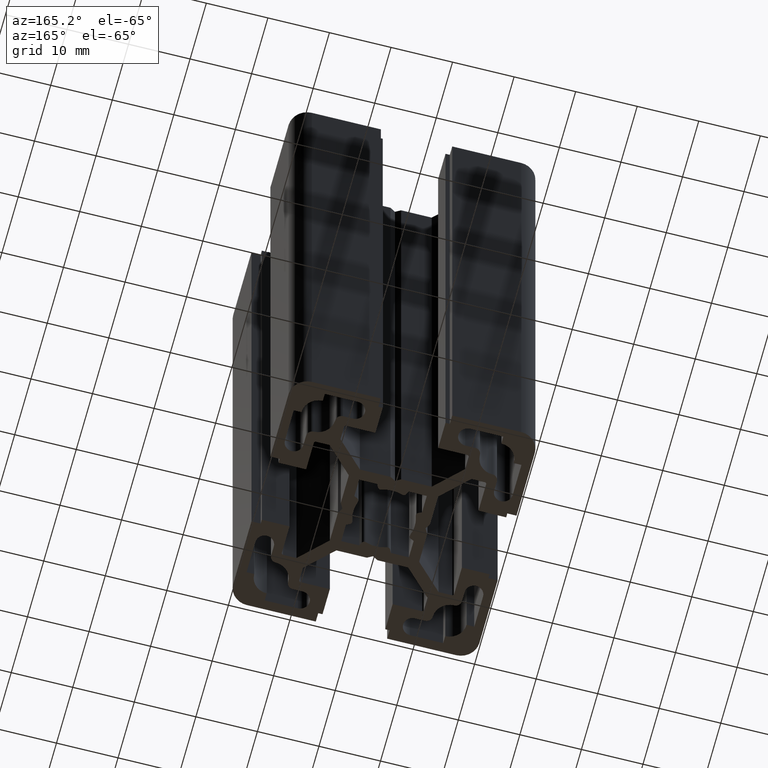
[diagram: clean part render]
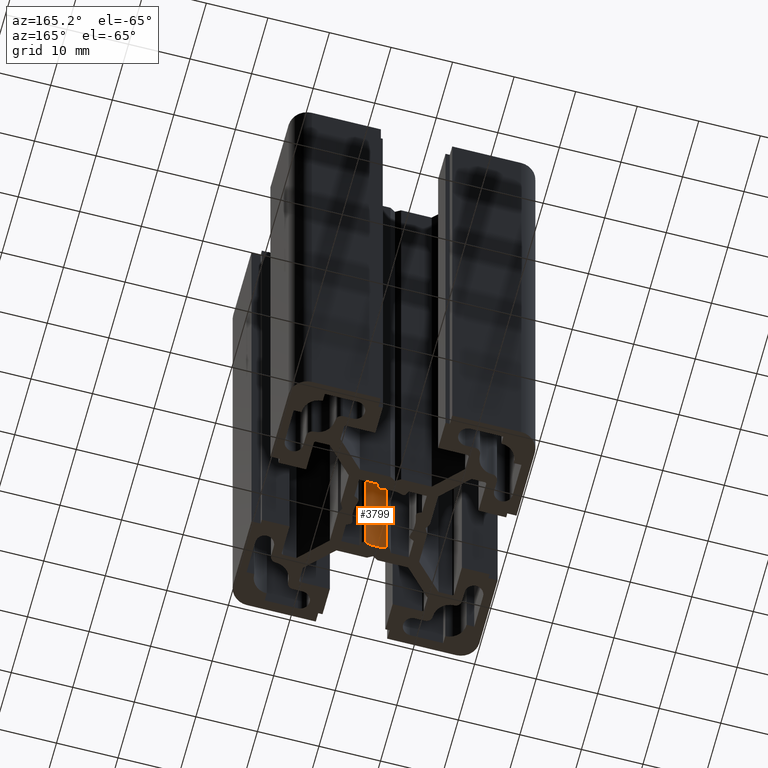
[diagram: same view with one face highlighted and labeled with its STEP entity id]
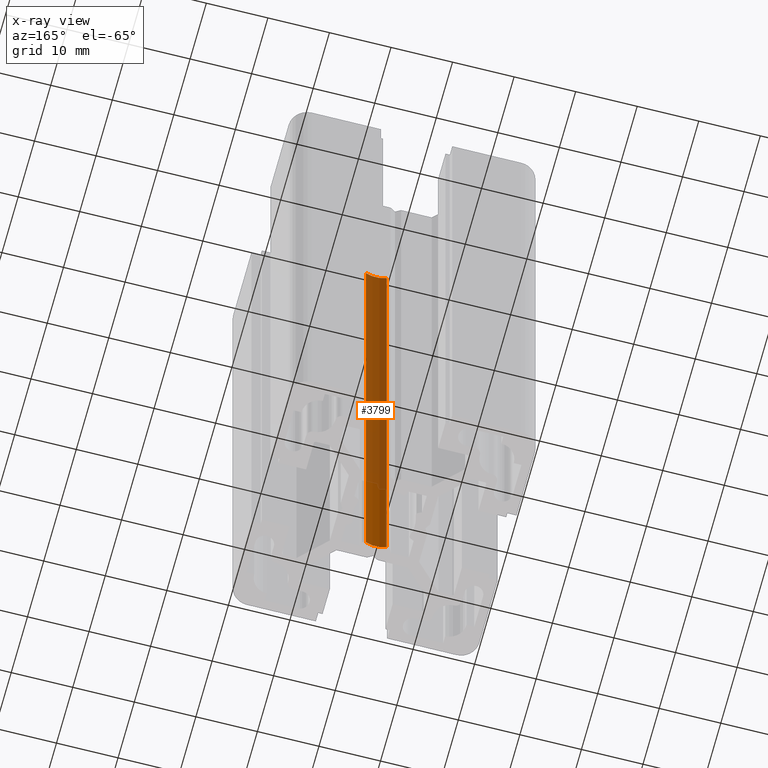
[diagram: x-ray of the same camera — body ghosted, the highlighted face saturated]
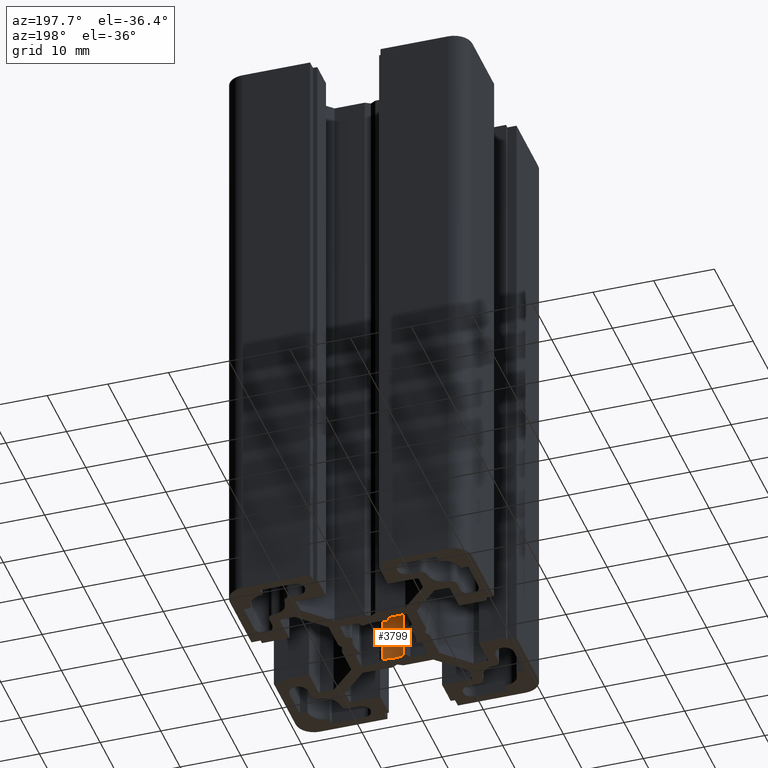
[diagram: same view with one face highlighted and labeled with its STEP entity id]
A machine part, auxiliary view. The second image highlights one B-rep face of the part: STEP entity #3799.
The next image is the same camera in x-ray: the body ghosted, the highlighted face saturated — about 78% of this face is hidden behind the body in this view.
A second angle (auxiliary view) of the same face is appended — the face is thin or edge-on in the first view.
In plain terms, the highlighted cylindrical surface (edge-blend (fillet) strip) has radius 5 mm, axis along (-0, -0, -1).
Its self-contained STEP definition (entity closure, byte-faithful):
#761 = AXIS2_PLACEMENT_3D ( 'NONE', #816, #811, #810 ) ;
#764 = CARTESIAN_POINT ( 'NONE',  ( 1.692383020092335800, -4.704874037984772000, 100.0000000000000000 ) ) ;
#768 = CIRCLE ( 'NONE', #761, 4.999999999999999100 ) ;
#773 = CARTESIAN_POINT ( 'NONE',  ( -1.692383020092334900, -4.704874037984771100, 100.0000000000000000 ) ) ;
#810 = DIRECTION ( 'NONE',  ( 1.000000000000000000, 0.0000000000000000000, 0.0000000000000000000 ) ) ;
#811 = DIRECTION ( 'NONE',  ( 0.0000000000000000000, 0.0000000000000000000, 1.000000000000000000 ) ) ;
#816 = CARTESIAN_POINT ( 'NONE',  ( 8.673617379884035500E-016, 7.719645653296256200E-016, 100.0000000000000000 ) ) ;
#1356 = CYLINDRICAL_SURFACE ( 'NONE', #1414, 4.999999999999999100 ) ;
#1366 = CARTESIAN_POINT ( 'NONE',  ( 8.673617379884035500E-016, 7.719645653296256200E-016, 100.0000000000000000 ) ) ;
#1403 = DIRECTION ( 'NONE',  ( -1.000000000000000000, 0.0000000000000000000, 0.0000000000000000000 ) ) ;
#1408 = DIRECTION ( 'NONE',  ( -0.0000000000000000000, -0.0000000000000000000, -1.000000000000000000 ) ) ;
#1409 = VECTOR ( 'NONE', #1408, 1000.000000000000000 ) ;
#1410 = CARTESIAN_POINT ( 'NONE',  ( -1.692383020092334900, -4.704874037984771100, 100.0000000000000000 ) ) ;
#1411 = LINE ( 'NONE', #1410, #1409 ) ;
#1412 = DIRECTION ( 'NONE',  ( -0.0000000000000000000, -0.0000000000000000000, -1.000000000000000000 ) ) ;
#1414 = AXIS2_PLACEMENT_3D ( 'NONE', #1366, #1412, #1403 ) ;
#1415 = FACE_OUTER_BOUND ( 'NONE', #3792, .T. ) ;
#1423 = LINE ( 'NONE', #1466, #1465 ) ;
#1464 = DIRECTION ( 'NONE',  ( -0.0000000000000000000, -0.0000000000000000000, -1.000000000000000000 ) ) ;
#1465 = VECTOR ( 'NONE', #1464, 1000.000000000000000 ) ;
#1466 = CARTESIAN_POINT ( 'NONE',  ( 1.692383020092335800, -4.704874037984772000, 100.0000000000000000 ) ) ;
#2621 = VERTEX_POINT ( 'NONE', #5143 ) ;
#2668 = EDGE_CURVE ( 'NONE', #2621, #2686, #5208, .T. ) ;
#2686 = VERTEX_POINT ( 'NONE', #5233 ) ;
#3393 = VERTEX_POINT ( 'NONE', #773 ) ;
#3394 = VERTEX_POINT ( 'NONE', #764 ) ;
#3402 = EDGE_CURVE ( 'NONE', #3393, #3394, #768, .T. ) ;
#3790 = ORIENTED_EDGE ( 'NONE', *, *, #2668, .F. ) ;
#3792 = EDGE_LOOP ( 'NONE', ( #3790, #3846, #3848, #3793 ) ) ;
#3793 = ORIENTED_EDGE ( 'NONE', *, *, #3847, .T. ) ;
#3795 = EDGE_CURVE ( 'NONE', #3393, #2621, #1411, .T. ) ;
#3799 = ADVANCED_FACE ( 'NONE', ( #1415 ), #1356, .F. ) ;
#3846 = ORIENTED_EDGE ( 'NONE', *, *, #3795, .F. ) ;
#3847 = EDGE_CURVE ( 'NONE', #3394, #2686, #1423, .T. ) ;
#3848 = ORIENTED_EDGE ( 'NONE', *, *, #3402, .T. ) ;
#5143 = CARTESIAN_POINT ( 'NONE',  ( -1.692383020092334900, -4.704874037984771100, 0.0000000000000000000 ) ) ;
#5200 = AXIS2_PLACEMENT_3D ( 'NONE', #5243, #5242, #5241 ) ;
#5208 = CIRCLE ( 'NONE', #5200, 4.999999999999999100 ) ;
#5233 = CARTESIAN_POINT ( 'NONE',  ( 1.692383020092335800, -4.704874037984772000, 0.0000000000000000000 ) ) ;
#5241 = DIRECTION ( 'NONE',  ( 1.000000000000000000, 0.0000000000000000000, 0.0000000000000000000 ) ) ;
#5242 = DIRECTION ( 'NONE',  ( 0.0000000000000000000, 0.0000000000000000000, 1.000000000000000000 ) ) ;
#5243 = CARTESIAN_POINT ( 'NONE',  ( 8.673617379884035500E-016, 7.719645653296256200E-016, 0.0000000000000000000 ) ) ;